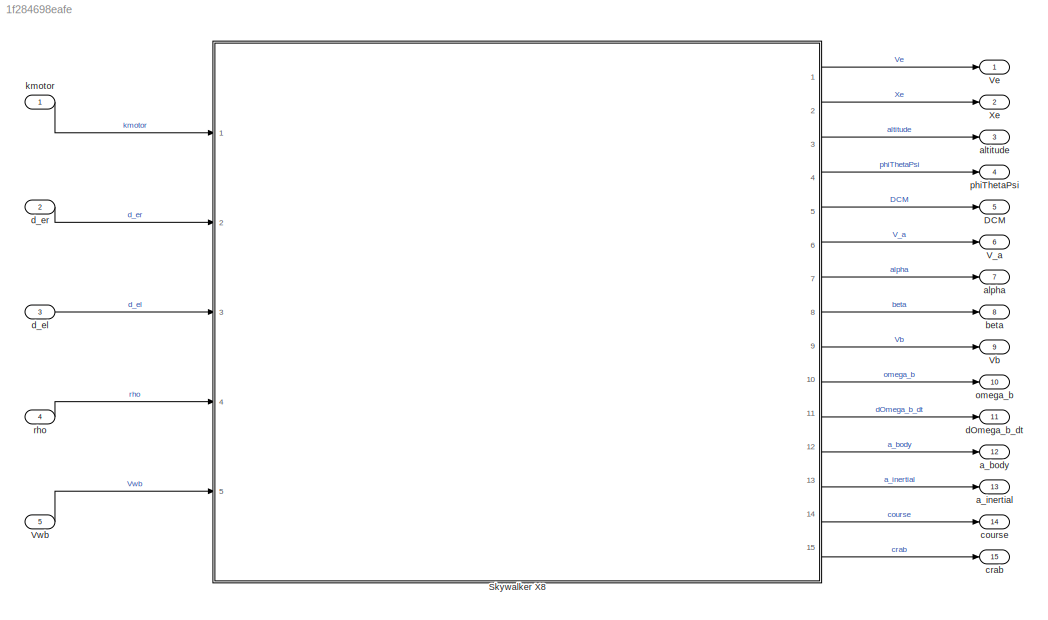
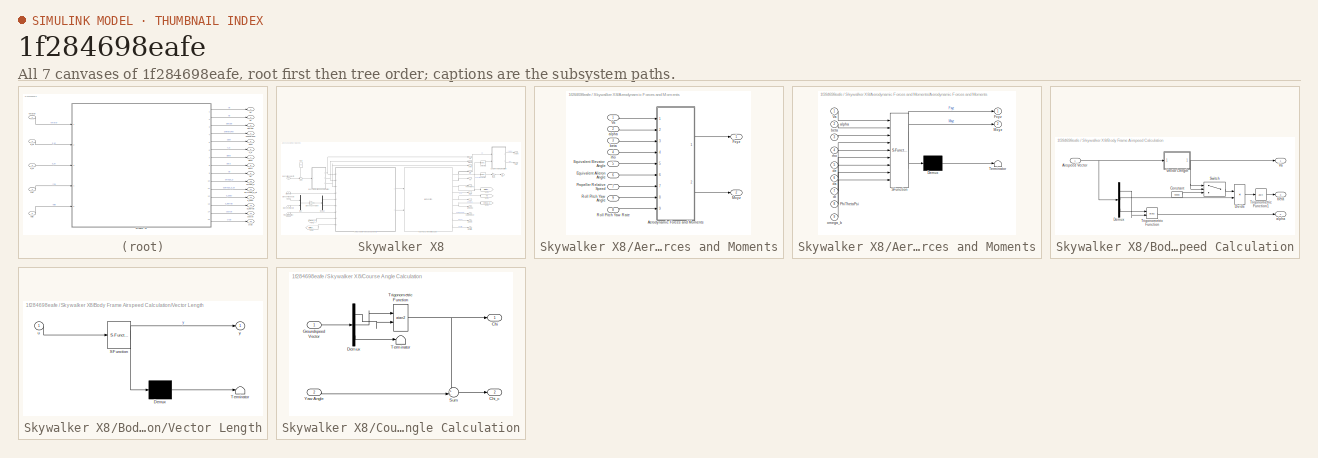
[diagram: thumbnail index - all 7 canvases of the model, root first then tree order]
MODEL slx_1f284698eafe
KIND model
CONFIG AbsTol = auto
CONFIG EnableMultiTasking = off
CONFIG FixedStep = 0.001
CONFIG MaxStep = auto
CONFIG MinStep = auto
CONFIG RelTol = 1e-3
CONFIG SampleTimeConstraint = Unconstrained
CONFIG Solver = FixedStepAuto
CONFIG SolverName = FixedStepAuto
CONFIG StartTime = 0
CONFIG StopTime = 60
BLOCK [Outport] DCM
  IconDisplay = Port number
  Port = 5
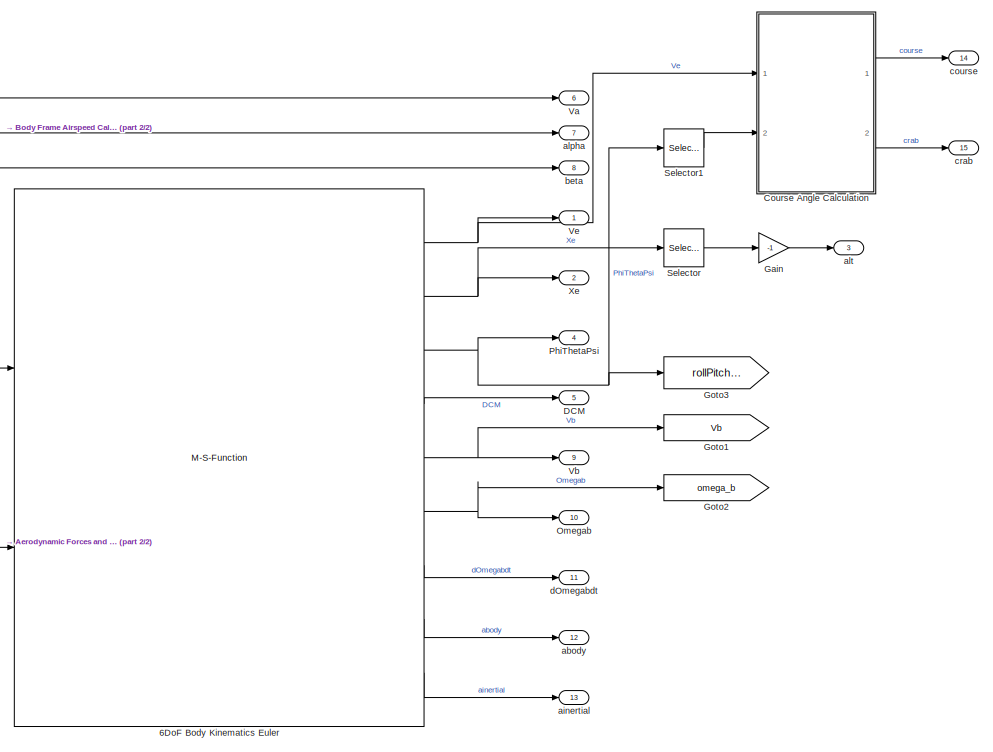
[diagram: Skywalker X8 - part 1/2, right side, full height]
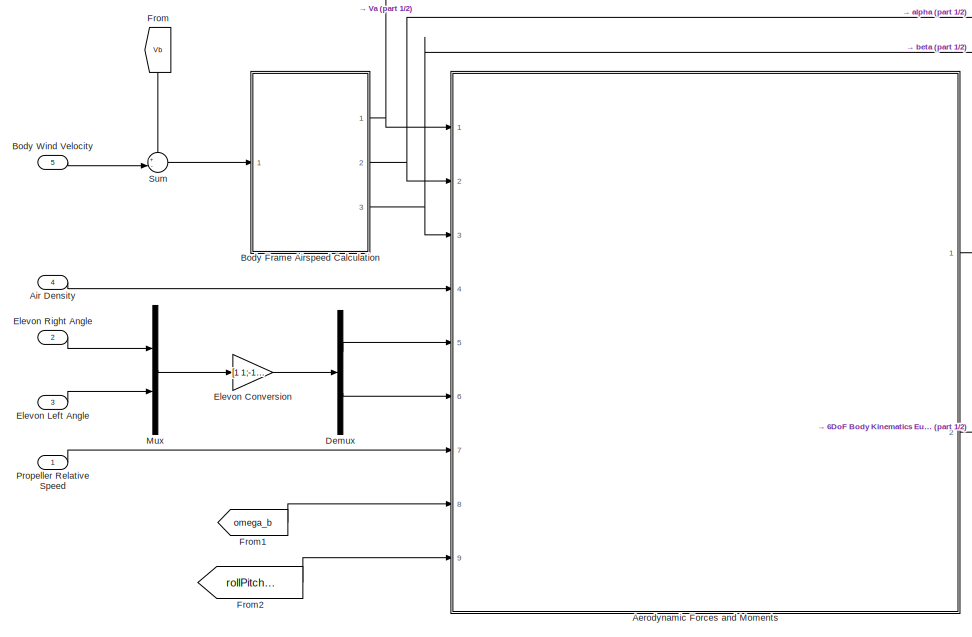
[diagram: Skywalker X8 - part 2/2, left side, full height]
BLOCK [SubSystem] Skywalker X8
  Ports = [5, 15]
  RequestExecContextInheritance = off
BLOCK [M-S-Function] Skywalker X8/6DoF Body Kinematics Euler
  FunctionName = ms_sixdof
  Parameters = Xe_init, Vb_init, PhiThetaPsi_init, PhiThetaPsiDot_init, Mass, Inertia_Matrix
  Ports = [2, 9]
BLOCK [SubSystem] Skywalker X8/Aerodynamic Forces and Moments
  Ports = [9, 2]
  RequestExecContextInheritance = off
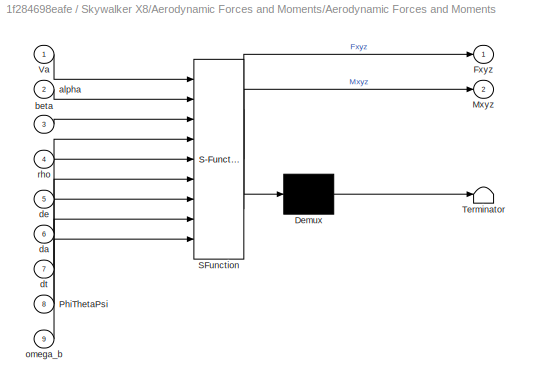
BLOCK [SubSystem] Skywalker X8/Aerodynamic Forces and Moments/Aerodynamic Forces and Moments
  ErrorFcn = Stateflow.Translate.translate
  PermitHierarchicalResolution = ExplicitOnly
  Ports = [9, 2]
  RequestExecContextInheritance = off
  SFBlockType = MATLAB Function
  TreatAsAtomicUnit = on
BLOCK [Demux] Skywalker X8/Aerodynamic Forces and Moments/Aerodynamic Forces and Moments/ Demux 
  Outputs = 1
  Ports = [1, 1]
BLOCK [S-Function] Skywalker X8/Aerodynamic Forces and Moments/Aerodynamic Forces and Moments/ SFunction 
  EnableBusSupport = on
  FunctionName = sf_sfun
  Parameters = CD,CI,CL,CY,Cm,Cmfp,Cn,Cprop,M_trans,S,Sprop,alpha_0,b,c,g,kOmega,kTp,kmotor,m
  PortCounts = [9 3]
  Ports = [9, 3]
  SFcnIsStateOwnerBlock = off
  SFunctionDeploymentMode = off
  Tag = Stateflow S-Function SkywalkerX8_AircraftModel 1
BLOCK [Terminator] Skywalker X8/Aerodynamic Forces and Moments/Aerodynamic Forces and Moments/ Terminator 
BLOCK [Outport] Skywalker X8/Aerodynamic Forces and Moments/Aerodynamic Forces and Moments/Fxyz
  IconDisplay = Port number
BLOCK [Outport] Skywalker X8/Aerodynamic Forces and Moments/Aerodynamic Forces and Moments/Mxyz
  IconDisplay = Port number
  Port = 2
BLOCK [Inport] Skywalker X8/Aerodynamic Forces and Moments/Aerodynamic Forces and Moments/PhiThetaPsi
  IconDisplay = Port number
  Port = 8
BLOCK [Inport] Skywalker X8/Aerodynamic Forces and Moments/Aerodynamic Forces and Moments/Va
  IconDisplay = Port number
BLOCK [Inport] Skywalker X8/Aerodynamic Forces and Moments/Aerodynamic Forces and Moments/alpha
  IconDisplay = Port number
  Port = 2
BLOCK [Inport] Skywalker X8/Aerodynamic Forces and Moments/Aerodynamic Forces and Moments/beta
  IconDisplay = Port number
  Port = 3
BLOCK [Inport] Skywalker X8/Aerodynamic Forces and Moments/Aerodynamic Forces and Moments/da
  IconDisplay = Port number
  Port = 6
BLOCK [Inport] Skywalker X8/Aerodynamic Forces and Moments/Aerodynamic Forces and Moments/de
  IconDisplay = Port number
  Port = 5
BLOCK [Inport] Skywalker X8/Aerodynamic Forces and Moments/Aerodynamic Forces and Moments/dt
  IconDisplay = Port number
  Port = 7
BLOCK [Inport] Skywalker X8/Aerodynamic Forces and Moments/Aerodynamic Forces and Moments/omega_b
  IconDisplay = Port number
  Port = 9
BLOCK [Inport] Skywalker X8/Aerodynamic Forces and Moments/Aerodynamic Forces and Moments/rho
  IconDisplay = Port number
  Port = 4
BLOCK [Inport] Skywalker X8/Aerodynamic Forces and Moments/Equivalent Aileron Angle
  IconDisplay = Port number
  Port = 6
BLOCK [Inport] Skywalker X8/Aerodynamic Forces and Moments/Equivalent Elevator Angle
  IconDisplay = Port number
  Port = 5
BLOCK [Outport] Skywalker X8/Aerodynamic Forces and Moments/Fxyz
  IconDisplay = Port number
BLOCK [Outport] Skywalker X8/Aerodynamic Forces and Moments/Mxyz
  IconDisplay = Port number
  Port = 2
BLOCK [Inport] Skywalker X8/Aerodynamic Forces and Moments/Propeller Relative Speed
  IconDisplay = Port number
  Port = 7
BLOCK [Inport] Skywalker X8/Aerodynamic Forces and Moments/Roll Pitch Yaw Angle 
  IconDisplay = Port number
  Port = 9
BLOCK [Inport] Skywalker X8/Aerodynamic Forces and Moments/Roll Pitch Yaw Rate
  IconDisplay = Port number
  Port = 8
BLOCK [Inport] Skywalker X8/Aerodynamic Forces and Moments/Va
  IconDisplay = Port number
BLOCK [Inport] Skywalker X8/Aerodynamic Forces and Moments/alpha
  IconDisplay = Port number
  Port = 2
BLOCK [Inport] Skywalker X8/Aerodynamic Forces and Moments/beta
  IconDisplay = Port number
  Port = 3
BLOCK [Inport] Skywalker X8/Aerodynamic Forces and Moments/rho
  IconDisplay = Port number
  Port = 4
BLOCK [Inport] Skywalker X8/Air Density
  IconDisplay = Port number
  Port = 4
BLOCK [SubSystem] Skywalker X8/Body Frame Airspeed Calculation
  Ports = [1, 3]
  RequestExecContextInheritance = off
BLOCK [Inport] Skywalker X8/Body Frame Airspeed Calculation/Airspeed Vector
  IconDisplay = Port number
BLOCK [Constant] Skywalker X8/Body Frame Airspeed Calculation/Constant
  Value = 99999
BLOCK [Demux] Skywalker X8/Body Frame Airspeed Calculation/Demux
  DisplayOption = bar
  Outputs = 3
  Ports = [1, 3]
BLOCK [Product] Skywalker X8/Body Frame Airspeed Calculation/Divide
  InputSameDT = off
  Inputs = /*
  OutDataTypeStr = Inherit: Inherit via internal rule
  Ports = [2, 1]
  RndMeth = Floor
  SaturateOnIntegerOverflow = off
BLOCK [Switch] Skywalker X8/Body Frame Airspeed Calculation/Switch
  Criteria = u2 > Threshold
  InputSameDT = off
  SaturateOnIntegerOverflow = off
  Threshold = 0.01
BLOCK [Trigonometry] Skywalker X8/Body Frame Airspeed Calculation/Trigonometric Function
  Operator = atan2
  Ports = [2, 1]
BLOCK [Trigonometry] Skywalker X8/Body Frame Airspeed Calculation/Trigonometric Function1
  Operator = asin
  Ports = [1, 1]
BLOCK [Outport] Skywalker X8/Body Frame Airspeed Calculation/Va
  IconDisplay = Port number
BLOCK [SubSystem] Skywalker X8/Body Frame Airspeed Calculation/Vector Length
  ErrorFcn = Stateflow.Translate.translate
  PermitHierarchicalResolution = ExplicitOnly
  Ports = [1, 1]
  RequestExecContextInheritance = off
  SFBlockType = MATLAB Function
  TreatAsAtomicUnit = on
BLOCK [Demux] Skywalker X8/Body Frame Airspeed Calculation/Vector Length/ Demux 
  Outputs = 1
  Ports = [1, 1]
BLOCK [S-Function] Skywalker X8/Body Frame Airspeed Calculation/Vector Length/ SFunction 
  EnableBusSupport = on
  FunctionName = sf_sfun
  PortCounts = [1 2]
  Ports = [1, 2]
  SFcnIsStateOwnerBlock = off
  SFunctionDeploymentMode = off
  Tag = Stateflow S-Function SkywalkerX8_AircraftModel 2
BLOCK [Terminator] Skywalker X8/Body Frame Airspeed Calculation/Vector Length/ Terminator 
BLOCK [Inport] Skywalker X8/Body Frame Airspeed Calculation/Vector Length/u
  IconDisplay = Port number
BLOCK [Outport] Skywalker X8/Body Frame Airspeed Calculation/Vector Length/y
  IconDisplay = Port number
BLOCK [Outport] Skywalker X8/Body Frame Airspeed Calculation/alpha
  IconDisplay = Port number
  Port = 2
BLOCK [Outport] Skywalker X8/Body Frame Airspeed Calculation/beta
  IconDisplay = Port number
  Port = 3
BLOCK [Inport] Skywalker X8/Body Wind Velocity
  IconDisplay = Port number
  Port = 5
BLOCK [SubSystem] Skywalker X8/Course Angle Calculation
  Ports = [2, 2]
  RequestExecContextInheritance = off
BLOCK [Outport] Skywalker X8/Course Angle Calculation/Chi
  IconDisplay = Port number
BLOCK [Outport] Skywalker X8/Course Angle Calculation/Chi_c
  IconDisplay = Port number
  Port = 2
BLOCK [Demux] Skywalker X8/Course Angle Calculation/Demux
  DisplayOption = bar
  Outputs = 3
  Ports = [1, 3]
BLOCK [Inport] Skywalker X8/Course Angle Calculation/Groundspeed Vector
  IconDisplay = Port number
BLOCK [Sum] Skywalker X8/Course Angle Calculation/Sum
  IconShape = round
  InputSameDT = off
  Inputs = +-|
  OutDataTypeStr = Inherit: Inherit via internal rule
  Ports = [2, 1]
  SaturateOnIntegerOverflow = off
BLOCK [Terminator] Skywalker X8/Course Angle Calculation/Terminator
BLOCK [Trigonometry] Skywalker X8/Course Angle Calculation/Trigonometric Function
  Operator = atan2
  Ports = [2, 1]
BLOCK [Inport] Skywalker X8/Course Angle Calculation/Yaw Angle
  IconDisplay = Port number
  Port = 2
BLOCK [Outport] Skywalker X8/DCM
  IconDisplay = Port number
  Port = 5
BLOCK [Demux] Skywalker X8/Demux
  DisplayOption = bar
  Outputs = 2
  Ports = [1, 2]
BLOCK [Gain] Skywalker X8/Elevon Conversion
  Gain = [1 1;-1 1]
  Multiplication = Matrix(K*u)
  OutDataTypeStr = Inherit: Inherit via internal rule
  ParamDataTypeStr = Inherit: Inherit via internal rule
  SaturateOnIntegerOverflow = off
BLOCK [Inport] Skywalker X8/Elevon Left Angle
  IconDisplay = Port number
  Port = 3
BLOCK [Inport] Skywalker X8/Elevon Right Angle
  IconDisplay = Port number
  Port = 2
BLOCK [From] Skywalker X8/From
  GotoTag = Vb
BLOCK [From] Skywalker X8/From1
  GotoTag = omega_b
BLOCK [From] Skywalker X8/From2
  GotoTag = rollPitchYawAngle
BLOCK [Gain] Skywalker X8/Gain
  Gain = -1
  OutDataTypeStr = Inherit: Inherit via internal rule
  ParamDataTypeStr = Inherit: Inherit via internal rule
  SaturateOnIntegerOverflow = off
BLOCK [Goto] Skywalker X8/Goto1
  GotoTag = Vb
BLOCK [Goto] Skywalker X8/Goto2
  GotoTag = omega_b
BLOCK [Goto] Skywalker X8/Goto3
  GotoTag = rollPitchYawAngle
BLOCK [Mux] Skywalker X8/Mux
  DisplayOption = bar
  Inputs = 2
  Ports = [2, 1]
BLOCK [Outport] Skywalker X8/Omegab
  IconDisplay = Port number
  Port = 10
BLOCK [Outport] Skywalker X8/PhiThetaPsi
  IconDisplay = Port number
  Port = 4
BLOCK [Inport] Skywalker X8/Propeller Relative Speed
  IconDisplay = Port number
BLOCK [Selector] Skywalker X8/Selector
  IndexOptions = Index vector (dialog)
  Indices = 3
  InputPortWidth = 3
  OutputSizes = 1
  Ports = [1, 1]
BLOCK [Selector] Skywalker X8/Selector1
  IndexOptions = Index vector (dialog)
  Indices = 3
  InputPortWidth = 3
  OutputSizes = 1
  Ports = [1, 1]
BLOCK [Sum] Skywalker X8/Sum
  IconShape = round
  InputSameDT = off
  Inputs = +-|
  OutDataTypeStr = Inherit: Inherit via internal rule
  Ports = [2, 1]
  SaturateOnIntegerOverflow = off
BLOCK [Outport] Skywalker X8/Va
  IconDisplay = Port number
  Port = 6
BLOCK [Outport] Skywalker X8/Vb
  IconDisplay = Port number
  Port = 9
BLOCK [Outport] Skywalker X8/Ve
  IconDisplay = Port number
BLOCK [Outport] Skywalker X8/Xe
  IconDisplay = Port number
  Port = 2
BLOCK [Outport] Skywalker X8/abody
  IconDisplay = Port number
  Port = 12
BLOCK [Outport] Skywalker X8/ainertial
  IconDisplay = Port number
  Port = 13
BLOCK [Outport] Skywalker X8/alpha
  IconDisplay = Port number
  Port = 7
BLOCK [Outport] Skywalker X8/alt 
  IconDisplay = Port number
  Port = 3
BLOCK [Outport] Skywalker X8/beta
  IconDisplay = Port number
  Port = 8
BLOCK [Outport] Skywalker X8/course
  IconDisplay = Port number
  Port = 14
BLOCK [Outport] Skywalker X8/crab
  IconDisplay = Port number
  Port = 15
BLOCK [Outport] Skywalker X8/dOmegabdt
  IconDisplay = Port number
  Port = 11
BLOCK [Outport] V_a
  IconDisplay = Port number
  Port = 6
BLOCK [Outport] Vb
  IconDisplay = Port number
  Port = 9
BLOCK [Outport] Ve
  IconDisplay = Port number
BLOCK [Inport] Vwb
  IconDisplay = Port number
  Port = 5
  PortDimensions = [1, 3]
BLOCK [Outport] Xe
  IconDisplay = Port number
  Port = 2
BLOCK [Outport] a_body
  IconDisplay = Port number
  Port = 12
BLOCK [Outport] a_inertial
  IconDisplay = Port number
  Port = 13
BLOCK [Outport] alpha
  IconDisplay = Port number
  Port = 7
BLOCK [Outport] altitude
  IconDisplay = Port number
  Port = 3
BLOCK [Outport] beta
  IconDisplay = Port number
  Port = 8
BLOCK [Outport] course
  IconDisplay = Port number
  Port = 14
BLOCK [Outport] crab
  IconDisplay = Port number
  Port = 15
BLOCK [Outport] dOmega_b_dt
  IconDisplay = Port number
  Port = 11
BLOCK [Inport] d_el
  IconDisplay = Port number
  Port = 3
BLOCK [Inport] d_er
  IconDisplay = Port number
  Port = 2
BLOCK [Inport] kmotor
  IconDisplay = Port number
BLOCK [Outport] omega_b
  IconDisplay = Port number
  Port = 10
BLOCK [Outport] phiThetaPsi
  IconDisplay = Port number
  Port = 4
BLOCK [Inport] rho
  IconDisplay = Port number
  Port = 4
NET Skywalker X8/6DoF Body Kinematics Euler:1 -> Skywalker X8/Course Angle Calculation:1, Skywalker X8/Ve:1
NET Skywalker X8/6DoF Body Kinematics Euler:2 -> Skywalker X8/Selector:1, Skywalker X8/Xe:1
NET Skywalker X8/6DoF Body Kinematics Euler:3 -> Skywalker X8/Goto3:1, Skywalker X8/PhiThetaPsi:1, Skywalker X8/Selector1:1
LINE Skywalker X8/6DoF Body Kinematics Euler:4 -> Skywalker X8/DCM:1
NET Skywalker X8/6DoF Body Kinematics Euler:5 -> Skywalker X8/Goto1:1, Skywalker X8/Vb:1
NET Skywalker X8/6DoF Body Kinematics Euler:6 -> Skywalker X8/Goto2:1, Skywalker X8/Omegab:1
LINE Skywalker X8/6DoF Body Kinematics Euler:7 -> Skywalker X8/dOmegabdt:1
LINE Skywalker X8/6DoF Body Kinematics Euler:8 -> Skywalker X8/abody:1
LINE Skywalker X8/6DoF Body Kinematics Euler:9 -> Skywalker X8/ainertial:1
LINE Skywalker X8/Aerodynamic Forces and Moments/Aerodynamic Forces and Moments:1 -> Skywalker X8/Aerodynamic Forces and Moments/Fxyz:1
LINE Skywalker X8/Aerodynamic Forces and Moments/Aerodynamic Forces and Moments:2 -> Skywalker X8/Aerodynamic Forces and Moments/Mxyz:1
LINE Skywalker X8/Aerodynamic Forces and Moments/Equivalent Aileron Angle:1 -> Skywalker X8/Aerodynamic Forces and Moments/Aerodynamic Forces and Moments:6
LINE Skywalker X8/Aerodynamic Forces and Moments/Equivalent Elevator Angle:1 -> Skywalker X8/Aerodynamic Forces and Moments/Aerodynamic Forces and Moments:5
LINE Skywalker X8/Aerodynamic Forces and Moments/Propeller Relative Speed:1 -> Skywalker X8/Aerodynamic Forces and Moments/Aerodynamic Forces and Moments:7
LINE Skywalker X8/Aerodynamic Forces and Moments/Roll Pitch Yaw Angle :1 -> Skywalker X8/Aerodynamic Forces and Moments/Aerodynamic Forces and Moments:8
LINE Skywalker X8/Aerodynamic Forces and Moments/Roll Pitch Yaw Rate:1 -> Skywalker X8/Aerodynamic Forces and Moments/Aerodynamic Forces and Moments:9
LINE Skywalker X8/Aerodynamic Forces and Moments/Va:1 -> Skywalker X8/Aerodynamic Forces and Moments/Aerodynamic Forces and Moments:1
LINE Skywalker X8/Aerodynamic Forces and Moments/alpha:1 -> Skywalker X8/Aerodynamic Forces and Moments/Aerodynamic Forces and Moments:2
LINE Skywalker X8/Aerodynamic Forces and Moments/beta:1 -> Skywalker X8/Aerodynamic Forces and Moments/Aerodynamic Forces and Moments:3
LINE Skywalker X8/Aerodynamic Forces and Moments/rho:1 -> Skywalker X8/Aerodynamic Forces and Moments/Aerodynamic Forces and Moments:4
LINE Skywalker X8/Aerodynamic Forces and Moments:1 -> Skywalker X8/6DoF Body Kinematics Euler:1
LINE Skywalker X8/Aerodynamic Forces and Moments:2 -> Skywalker X8/6DoF Body Kinematics Euler:2
LINE Skywalker X8/Air Density:1 -> Skywalker X8/Aerodynamic Forces and Moments:4
NET Skywalker X8/Body Frame Airspeed Calculation/Airspeed Vector:1 -> Skywalker X8/Body Frame Airspeed Calculation/Demux:1, Skywalker X8/Body Frame Airspeed Calculation/Vector Length:1
LINE Skywalker X8/Body Frame Airspeed Calculation/Constant:1 -> Skywalker X8/Body Frame Airspeed Calculation/Switch:3
LINE Skywalker X8/Body Frame Airspeed Calculation/Demux:1 -> Skywalker X8/Body Frame Airspeed Calculation/Trigonometric Function:2
LINE Skywalker X8/Body Frame Airspeed Calculation/Demux:2 -> Skywalker X8/Body Frame Airspeed Calculation/Divide:2
LINE Skywalker X8/Body Frame Airspeed Calculation/Demux:3 -> Skywalker X8/Body Frame Airspeed Calculation/Trigonometric Function:1
LINE Skywalker X8/Body Frame Airspeed Calculation/Divide:1 -> Skywalker X8/Body Frame Airspeed Calculation/Trigonometric Function1:1
LINE Skywalker X8/Body Frame Airspeed Calculation/Switch:1 -> Skywalker X8/Body Frame Airspeed Calculation/Divide:1
LINE Skywalker X8/Body Frame Airspeed Calculation/Trigonometric Function1:1 -> Skywalker X8/Body Frame Airspeed Calculation/beta:1
LINE Skywalker X8/Body Frame Airspeed Calculation/Trigonometric Function:1 -> Skywalker X8/Body Frame Airspeed Calculation/alpha:1
NET Skywalker X8/Body Frame Airspeed Calculation/Vector Length:1 -> Skywalker X8/Body Frame Airspeed Calculation/Switch:1, Skywalker X8/Body Frame Airspeed Calculation/Switch:2, Skywalker X8/Body Frame Airspeed Calculation/Va:1
NET Skywalker X8/Body Frame Airspeed Calculation:1 -> Skywalker X8/Aerodynamic Forces and Moments:1, Skywalker X8/Va:1
NET Skywalker X8/Body Frame Airspeed Calculation:2 -> Skywalker X8/Aerodynamic Forces and Moments:2, Skywalker X8/alpha:1
NET Skywalker X8/Body Frame Airspeed Calculation:3 -> Skywalker X8/Aerodynamic Forces and Moments:3, Skywalker X8/beta:1
LINE Skywalker X8/Body Wind Velocity:1 -> Skywalker X8/Sum:2
LINE Skywalker X8/Course Angle Calculation/Demux:1 -> Skywalker X8/Course Angle Calculation/Trigonometric Function:2
LINE Skywalker X8/Course Angle Calculation/Demux:2 -> Skywalker X8/Course Angle Calculation/Trigonometric Function:1
LINE Skywalker X8/Course Angle Calculation/Demux:3 -> Skywalker X8/Course Angle Calculation/Terminator:1
LINE Skywalker X8/Course Angle Calculation/Groundspeed Vector:1 -> Skywalker X8/Course Angle Calculation/Demux:1
LINE Skywalker X8/Course Angle Calculation/Sum:1 -> Skywalker X8/Course Angle Calculation/Chi_c:1
NET Skywalker X8/Course Angle Calculation/Trigonometric Function:1 -> Skywalker X8/Course Angle Calculation/Chi:1, Skywalker X8/Course Angle Calculation/Sum:1
LINE Skywalker X8/Course Angle Calculation/Yaw Angle:1 -> Skywalker X8/Course Angle Calculation/Sum:2
LINE Skywalker X8/Course Angle Calculation:1 -> Skywalker X8/course:1
LINE Skywalker X8/Course Angle Calculation:2 -> Skywalker X8/crab:1
LINE Skywalker X8/Demux:1 -> Skywalker X8/Aerodynamic Forces and Moments:5
LINE Skywalker X8/Demux:2 -> Skywalker X8/Aerodynamic Forces and Moments:6
LINE Skywalker X8/Elevon Conversion:1 -> Skywalker X8/Demux:1
LINE Skywalker X8/Elevon Left Angle:1 -> Skywalker X8/Mux:2
LINE Skywalker X8/Elevon Right Angle:1 -> Skywalker X8/Mux:1
LINE Skywalker X8/From1:1 -> Skywalker X8/Aerodynamic Forces and Moments:8
LINE Skywalker X8/From2:1 -> Skywalker X8/Aerodynamic Forces and Moments:9
LINE Skywalker X8/From:1 -> Skywalker X8/Sum:1
LINE Skywalker X8/Gain:1 -> Skywalker X8/alt :1
LINE Skywalker X8/Mux:1 -> Skywalker X8/Elevon Conversion:1
LINE Skywalker X8/Propeller Relative Speed:1 -> Skywalker X8/Aerodynamic Forces and Moments:7
LINE Skywalker X8/Selector1:1 -> Skywalker X8/Course Angle Calculation:2
LINE Skywalker X8/Selector:1 -> Skywalker X8/Gain:1
LINE Skywalker X8/Sum:1 -> Skywalker X8/Body Frame Airspeed Calculation:1
LINE Skywalker X8:1 -> Ve:1
LINE Skywalker X8:10 -> omega_b:1
LINE Skywalker X8:11 -> dOmega_b_dt:1
LINE Skywalker X8:12 -> a_body:1
LINE Skywalker X8:13 -> a_inertial:1
LINE Skywalker X8:14 -> course:1
LINE Skywalker X8:15 -> crab:1
LINE Skywalker X8:2 -> Xe:1
LINE Skywalker X8:3 -> altitude:1
LINE Skywalker X8:4 -> phiThetaPsi:1
LINE Skywalker X8:5 -> DCM:1
LINE Skywalker X8:6 -> V_a:1
LINE Skywalker X8:7 -> alpha:1
LINE Skywalker X8:8 -> beta:1
LINE Skywalker X8:9 -> Vb:1
LINE Vwb:1 -> Skywalker X8:5
LINE d_el:1 -> Skywalker X8:3
LINE d_er:1 -> Skywalker X8:2
LINE kmotor:1 -> Skywalker X8:1
LINE rho:1 -> Skywalker X8:4
note: NET lines group one-source signal fan-out (src -> all destinations, sorted); 1:1 wires keep LINE
CHART Skywalker X8/Aerodynamic Forces and Moments/Aerodynamic Forces and Moments states=1 transitions=1
  STATE_LABEL 'eML_blk_kernel()'
  STATE_LABEL 'SCRIPT:\nfunction [Fxyz, Mxyz] = fcn(Va, alpha, beta, rho, de, da, dt, PhiThetaPsi, omega_b, CD, CY, CL, CI, Cm, Cn, m, g, S, b, c, Sprop, Cprop, kmotor, kTp, kOmega, Cmfp, M_trans, alpha_0)\n\n[Fxyz, Mxyz] = f_ForcesAndMoments(Va, alpha, beta, rho, de, da, dt, PhiThetaPsi, omega_b, CD, CY, CL, CI, Cm, Cn, m, g, S, b, c, Sprop, Cprop, kmotor, kTp, kOmega, Cmfp, M_trans, alpha_0);\n\nend\n\n\n'
CHART Skywalker X8/Body Frame Airspeed Calculation/Vector Length states=1 transitions=1
  STATE_LABEL 'eML_blk_kernel()'
  STATE_LABEL "SCRIPT:\nfunction y = fcn(u)\n\ny = sqrt(u*u');\n"
